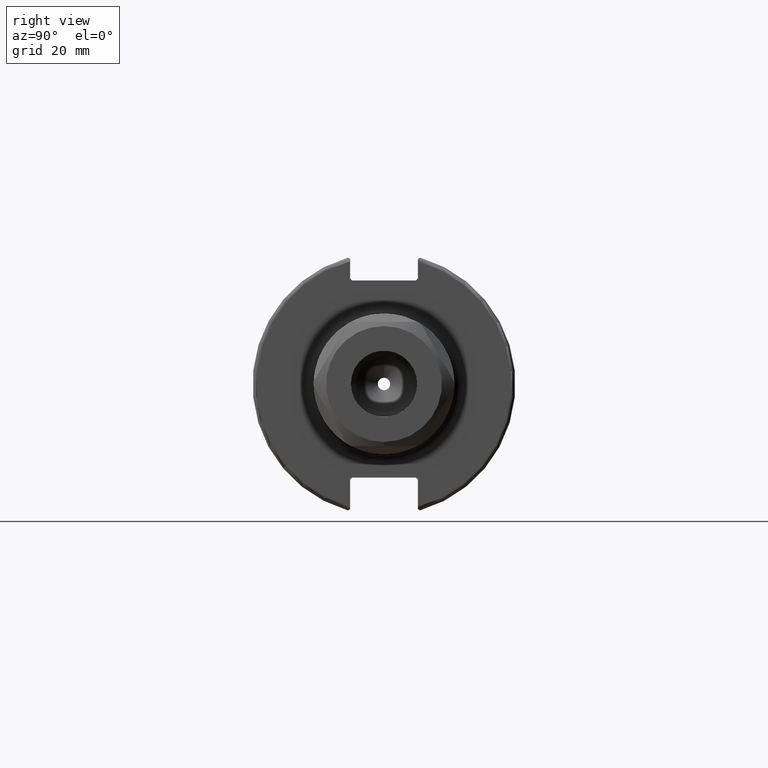
[diagram: clean part render]
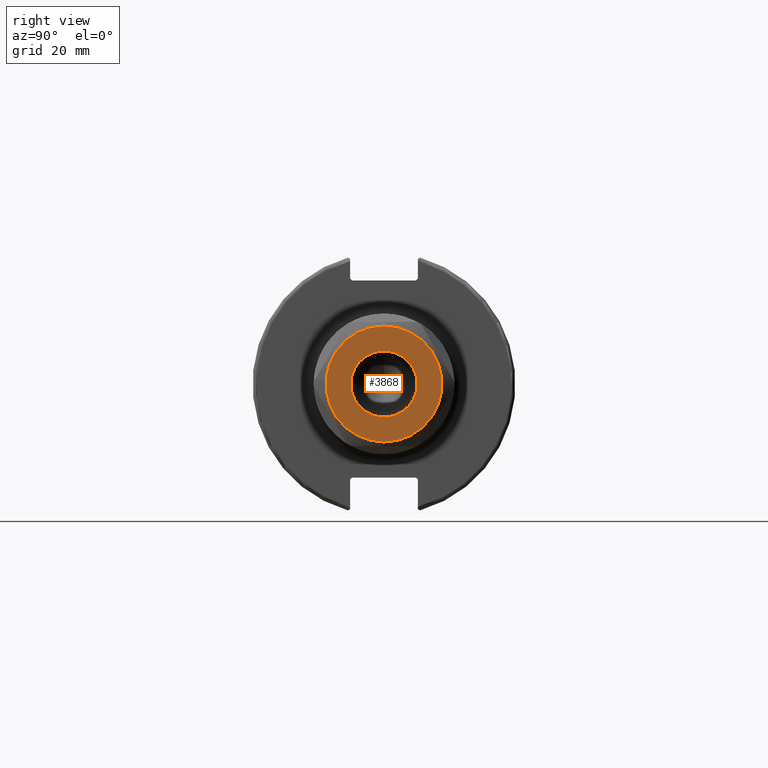
[diagram: same view with one face highlighted and labeled with its STEP entity id]
A machine part, right view. The second image highlights one B-rep face of the part: STEP entity #3868.
In plain terms, the highlighted planar face has unit normal (1, 0, 0).
Its self-contained STEP definition (entity closure, byte-faithful):
#203=FACE_BOUND('',#801,.T.);
#284=PLANE('',#4488);
#550=FACE_OUTER_BOUND('',#800,.T.);
#800=EDGE_LOOP('',(#3564,#3565));
#801=EDGE_LOOP('',(#3566,#3567));
#1461=CIRCLE('',#4476,14.);
#1462=CIRCLE('',#4477,14.);
#1463=CIRCLE('',#4489,8.);
#1464=CIRCLE('',#4490,8.);
#1872=VERTEX_POINT('',#7298);
#1873=VERTEX_POINT('',#7300);
#1874=VERTEX_POINT('',#7325);
#1875=VERTEX_POINT('',#7326);
#2435=EDGE_CURVE('',#1873,#1872,#1461,.T.);
#2436=EDGE_CURVE('',#1872,#1873,#1462,.T.);
#2444=EDGE_CURVE('',#1874,#1875,#1463,.T.);
#2445=EDGE_CURVE('',#1875,#1874,#1464,.T.);
#3564=ORIENTED_EDGE('',*,*,#2435,.T.);
#3565=ORIENTED_EDGE('',*,*,#2436,.T.);
#3566=ORIENTED_EDGE('',*,*,#2444,.T.);
#3567=ORIENTED_EDGE('',*,*,#2445,.T.);
#3868=ADVANCED_FACE('',(#550,#203),#284,.T.);
#4476=AXIS2_PLACEMENT_3D('',#7301,#5665,#5666);
#4477=AXIS2_PLACEMENT_3D('',#7302,#5667,#5668);
#4488=AXIS2_PLACEMENT_3D('',#7324,#5694,#5695);
#4489=AXIS2_PLACEMENT_3D('',#7327,#5696,#5697);
#4490=AXIS2_PLACEMENT_3D('',#7328,#5698,#5699);
#5665=DIRECTION('center_axis',(1.,0.,0.));
#5666=DIRECTION('ref_axis',(0.,0.,-1.));
#5667=DIRECTION('center_axis',(1.,0.,0.));
#5668=DIRECTION('ref_axis',(0.,0.,-1.));
#5694=DIRECTION('center_axis',(1.,0.,0.));
#5695=DIRECTION('ref_axis',(0.,0.,-1.));
#5696=DIRECTION('center_axis',(-1.,0.,0.));
#5697=DIRECTION('ref_axis',(0.,-1.,0.));
#5698=DIRECTION('center_axis',(-1.,0.,0.));
#5699=DIRECTION('ref_axis',(0.,-1.,0.));
#7298=CARTESIAN_POINT('',(9.499999999999,1.71450551880622E-15,13.9999999999994));
#7300=CARTESIAN_POINT('',(9.5,0.,-14.));
#7301=CARTESIAN_POINT('Origin',(9.5,0.,0.));
#7302=CARTESIAN_POINT('Origin',(9.5,0.,0.));
#7324=CARTESIAN_POINT('Origin',(9.5,0.,0.));
#7325=CARTESIAN_POINT('',(9.5,-8.,0.));
#7326=CARTESIAN_POINT('',(9.5,8.,-9.79717439317883E-16));
#7327=CARTESIAN_POINT('Origin',(9.5,0.,0.));
#7328=CARTESIAN_POINT('Origin',(9.5,0.,0.));